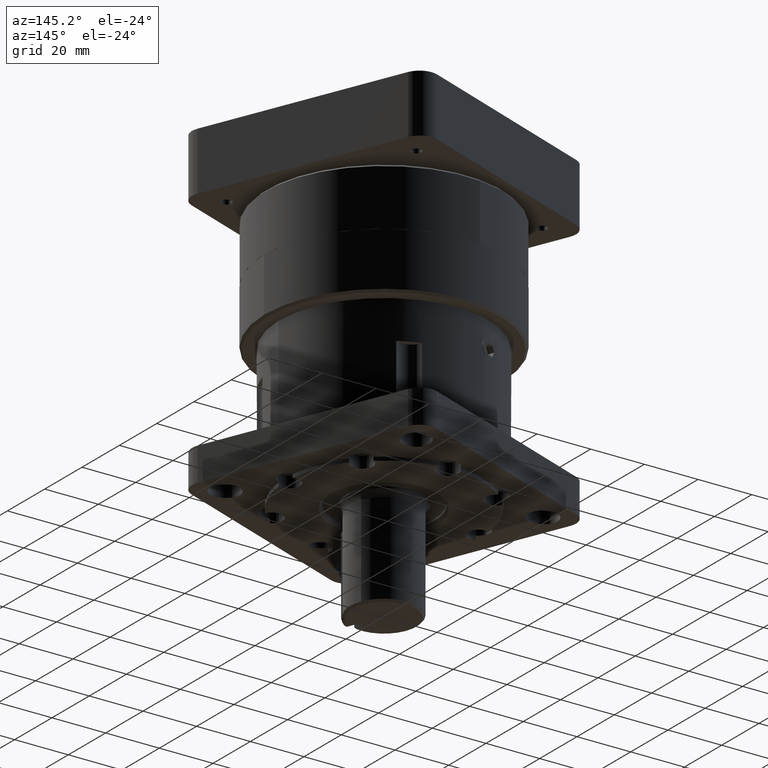
[diagram: clean part render]
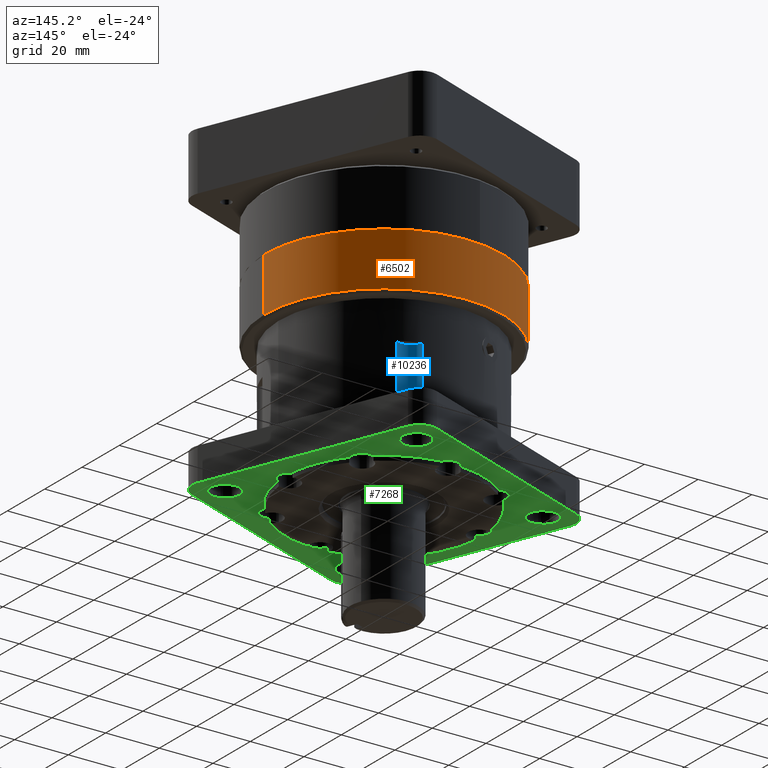
[diagram: same view with three faces highlighted in distinct colors, each labeled with its STEP entity id]
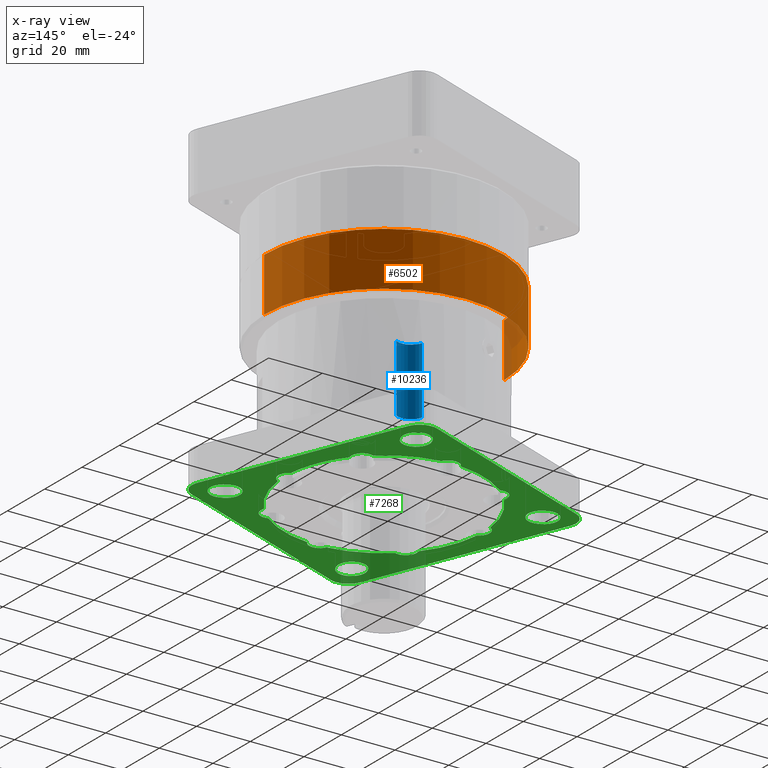
[diagram: x-ray of the same camera — body ghosted, the three highlighted faces saturated]
A machine part, auxiliary view with three faces highlighted in distinct colors.
The next image is the same camera in x-ray (body ghosted, the three faces saturated) — at least one of them is partly hidden behind the body in this view.
Their STEP definitions:

[orange] entity #6502 — the highlighted cylindrical surface (partial cylindrical patch) has radius 44.25 mm, axis along (-0, -0, 1).
#263 = CIRCLE ( 'NONE', #4123, 44.25000000000000711 ) ;
#607 = DIRECTION ( 'NONE',  ( -0.9999014065405877894, 0.01404197985165628326, -1.254489293361758247E-14 ) ) ;
#1160 = DIRECTION ( 'NONE',  ( -1.267388302276364896E-14, -1.075669440567348296E-14, 1.000000000000000000 ) ) ;
#2359 = ORIENTED_EDGE ( 'NONE', *, *, #15287, .T. ) ;
#2964 = ORIENTED_EDGE ( 'NONE', *, *, #7923, .F. ) ;
#3097 = ORIENTED_EDGE ( 'NONE', *, *, #6530, .T. ) ;
#3102 = CARTESIAN_POINT ( 'NONE',  ( -60.55208186478451893, 132.9359436952003080, 173.8901539304251571 ) ) ;
#3194 = VERTEX_POINT ( 'NONE', #3102 ) ;
#3426 = EDGE_CURVE ( 'NONE', #16001, #14882, #6044, .T. ) ;
#3724 = CYLINDRICAL_SURFACE ( 'NONE', #11090, 44.25000000000000711 ) ;
#4123 = AXIS2_PLACEMENT_3D ( 'NONE', #12904, #15497, #14371 ) ;
#5052 = CARTESIAN_POINT ( 'NONE',  ( -149.0433563436265274, 134.1786589120717395, 173.8901539304240487 ) ) ;
#6044 = LINE ( 'NONE', #14203, #15263 ) ;
#6502 = ADVANCED_FACE ( 'NONE', ( #14218 ), #3724, .T. ) ;
#6530 = EDGE_CURVE ( 'NONE', #14882, #3194, #263, .T. ) ;
#7923 = EDGE_CURVE ( 'NONE', #16551, #3194, #16749, .T. ) ;
#9649 = CARTESIAN_POINT ( 'NONE',  ( -60.55208186478427024, 132.9359436952004216, 153.8279539304250818 ) ) ;
#10056 = ORIENTED_EDGE ( 'NONE', *, *, #3426, .T. ) ;
#10175 = VECTOR ( 'NONE', #12136, 1000.000000000000000 ) ;
#10231 = DIRECTION ( 'NONE',  ( 0.9999014065405877894, -0.01404197985165315035, 1.254489293361758563E-14 ) ) ;
#10328 = AXIS2_PLACEMENT_3D ( 'NONE', #14724, #12278, #607 ) ;
#11090 = AXIS2_PLACEMENT_3D ( 'NONE', #16745, #1160, #10231 ) ;
#11651 = EDGE_LOOP ( 'NONE', ( #2359, #10056, #3097, #2964 ) ) ;
#11857 = CARTESIAN_POINT ( 'NONE',  ( -149.0433563436262716, 134.1786589120717395, 153.8279539304239734 ) ) ;
#12136 = DIRECTION ( 'NONE',  ( -1.267388302276364896E-14, -1.075669440567348296E-14, 1.000000000000000000 ) ) ;
#12278 = DIRECTION ( 'NONE',  ( -1.267388302276364896E-14, -1.075669440567348296E-14, 1.000000000000000000 ) ) ;
#12904 = CARTESIAN_POINT ( 'NONE',  ( -104.7977191042055267, 133.5573013036359669, 173.8901539304245887 ) ) ;
#13316 = CARTESIAN_POINT ( 'NONE',  ( -60.55208186478431998, 132.9359436952004785, 158.0659539304251382 ) ) ;
#14203 = CARTESIAN_POINT ( 'NONE',  ( -149.0433563436263569, 134.1786589120717963, 158.0659539304240297 ) ) ;
#14218 = FACE_OUTER_BOUND ( 'NONE', #11651, .T. ) ;
#14371 = DIRECTION ( 'NONE',  ( 0.9999014065405877894, -0.01404197985165315035, 1.254489293361758563E-14 ) ) ;
#14724 = CARTESIAN_POINT ( 'NONE',  ( -104.7977191042052851, 133.5573013036361942, 153.8279539304245418 ) ) ;
#14882 = VERTEX_POINT ( 'NONE', #5052 ) ;
#15263 = VECTOR ( 'NONE', #15484, 1000.000000000000000 ) ;
#15287 = EDGE_CURVE ( 'NONE', #16551, #16001, #15465, .T. ) ;
#15465 = CIRCLE ( 'NONE', #10328, 44.25000000000002132 ) ;
#15484 = DIRECTION ( 'NONE',  ( -1.267388302276364896E-14, -1.075669440567348296E-14, 1.000000000000000000 ) ) ;
#15497 = DIRECTION ( 'NONE',  ( 1.267242450402895730E-14, 1.075671488818361258E-14, -1.000000000000000000 ) ) ;
#16001 = VERTEX_POINT ( 'NONE', #11857 ) ;
#16551 = VERTEX_POINT ( 'NONE', #9649 ) ;
#16745 = CARTESIAN_POINT ( 'NONE',  ( -104.7977191042053420, 133.5573013036361374, 158.0659539304245698 ) ) ;
#16749 = LINE ( 'NONE', #13316, #10175 ) ;

[blue] entity #10236 — the highlighted cylindrical surface (edge-blend (fillet) strip) has radius 5 mm, axis along (0, 0, -1).
#34 = FACE_OUTER_BOUND ( 'NONE', #14190, .T. ) ;
#3888 = VERTEX_POINT ( 'NONE', #12994 ) ;
#3958 = ORIENTED_EDGE ( 'NONE', *, *, #14922, .F. ) ;
#4968 = AXIS2_PLACEMENT_3D ( 'NONE', #13341, #15959, #10678 ) ;
#5312 = DIRECTION ( 'NONE',  ( -0.9999014065405879004, 0.01404197985165334638, -1.110223024625157014E-14 ) ) ;
#5457 = EDGE_CURVE ( 'NONE', #11591, #13874, #8188, .T. ) ;
#5632 = VECTOR ( 'NONE', #12683, 1000.000000000000000 ) ;
#6398 = LINE ( 'NONE', #9249, #15831 ) ;
#7050 = LINE ( 'NONE', #11405, #5632 ) ;
#7687 = DIRECTION ( 'NONE',  ( 1.267388302276364896E-14, 1.075669440567348296E-14, -1.000000000000000000 ) ) ;
#8188 = CIRCLE ( 'NONE', #11811, 5.000000000000000000 ) ;
#8962 = CARTESIAN_POINT ( 'NONE',  ( -88.24849863570705111, 171.9023710455600451, 138.7859539304251939 ) ) ;
#8995 = CYLINDRICAL_SURFACE ( 'NONE', #10595, 4.999999999999998224 ) ;
#9023 = DIRECTION ( 'NONE',  ( 1.267388302276364896E-14, 1.075669440567348296E-14, -1.000000000000000000 ) ) ;
#9031 = CARTESIAN_POINT ( 'NONE',  ( -88.24849863570705111, 171.9023710455600451, 138.7859539304251939 ) ) ;
#9187 = VERTEX_POINT ( 'NONE', #15759 ) ;
#9249 = CARTESIAN_POINT ( 'NONE',  ( -85.73417312991301742, 167.5805465175495499, 126.2859539304251939 ) ) ;
#9923 = CARTESIAN_POINT ( 'NONE',  ( -85.73417312991317374, 167.5805465175494078, 138.7859539304251939 ) ) ;
#10236 = ADVANCED_FACE ( 'NONE', ( #34 ), #8995, .F. ) ;
#10501 = DIRECTION ( 'NONE',  ( -1.267388302276364896E-14, -1.075669440567348296E-14, 1.000000000000000000 ) ) ;
#10595 = AXIS2_PLACEMENT_3D ( 'NONE', #8962, #9023, #5312 ) ;
#10635 = ORIENTED_EDGE ( 'NONE', *, *, #13648, .T. ) ;
#10678 = DIRECTION ( 'NONE',  ( -0.9999014065405879004, 0.01404197985165334638, -1.387778780781446149E-14 ) ) ;
#11405 = CARTESIAN_POINT ( 'NONE',  ( -93.11795291853343315, 170.7672873537285341, 126.2859539304251371 ) ) ;
#11411 = CARTESIAN_POINT ( 'NONE',  ( -93.11795291853360368, 170.7672873537283920, 138.7859539304251371 ) ) ;
#11591 = VERTEX_POINT ( 'NONE', #9923 ) ;
#11616 = DIRECTION ( 'NONE',  ( -0.01404197985166444340, -0.9999014065405875673, -1.110223024625156540E-14 ) ) ;
#11811 = AXIS2_PLACEMENT_3D ( 'NONE', #9031, #7687, #11616 ) ;
#12683 = DIRECTION ( 'NONE',  ( 1.267388302276364896E-14, 1.075669440567348296E-14, -1.000000000000000000 ) ) ;
#12922 = CIRCLE ( 'NONE', #4968, 4.999999999999998224 ) ;
#12994 = CARTESIAN_POINT ( 'NONE',  ( -93.11795291853327683, 170.7672873537286762, 113.7859539304251228 ) ) ;
#13341 = CARTESIAN_POINT ( 'NONE',  ( -88.24849863570673847, 171.9023710455603293, 113.7859539304252081 ) ) ;
#13488 = ORIENTED_EDGE ( 'NONE', *, *, #5457, .F. ) ;
#13648 = EDGE_CURVE ( 'NONE', #9187, #3888, #12922, .T. ) ;
#13874 = VERTEX_POINT ( 'NONE', #11411 ) ;
#14190 = EDGE_LOOP ( 'NONE', ( #13488, #14428, #10635, #3958 ) ) ;
#14428 = ORIENTED_EDGE ( 'NONE', *, *, #16520, .F. ) ;
#14922 = EDGE_CURVE ( 'NONE', #13874, #3888, #7050, .T. ) ;
#15759 = CARTESIAN_POINT ( 'NONE',  ( -85.73417312991286110, 167.5805465175496920, 113.7859539304251939 ) ) ;
#15831 = VECTOR ( 'NONE', #10501, 1000.000000000000000 ) ;
#15959 = DIRECTION ( 'NONE',  ( 1.267388302276364896E-14, 1.075669440567348296E-14, -1.000000000000000000 ) ) ;
#16520 = EDGE_CURVE ( 'NONE', #9187, #11591, #6398, .T. ) ;

[green] entity #7268 — the highlighted planar face has unit normal (-0, -0, 1).
#7 = EDGE_CURVE ( 'NONE', #14806, #3443, #3850, .T. ) ;
#57 = CARTESIAN_POINT ( 'NONE',  ( -79.62069283818506449, 192.0048619747230418, 101.3421530004241617 ) ) ;
#70 = DIRECTION ( 'NONE',  ( -1.269886168408491614E-14, -1.076663275899905845E-14, 1.000000000000000000 ) ) ;
#130 = DIRECTION ( 'NONE',  ( 1.269886168408491614E-14, 1.076663275899905845E-14, -1.000000000000000000 ) ) ;
#173 = CARTESIAN_POINT ( 'NONE',  ( -104.7977191042035230, 133.5573013036376153, 101.3421530004232238 ) ) ;
#219 = DIRECTION ( 'NONE',  ( 1.269886168408491614E-14, 1.076663275899905845E-14, -1.000000000000000000 ) ) ;
#257 = VERTEX_POINT ( 'NONE', #16183 ) ;
#391 = DIRECTION ( 'NONE',  ( 0.9291620770789343897, 0.3696726045007396877, 1.510801161037340065E-14 ) ) ;
#584 = CARTESIAN_POINT ( 'NONE',  ( -152.5681355903859924, 157.9875429461714020, 101.3421530004228686 ) ) ;
#621 = AXIS2_PLACEMENT_3D ( 'NONE', #15481, #1289, #2587 ) ;
#632 = CARTESIAN_POINT ( 'NONE',  ( -119.9830555142412152, 85.65705524410276439, 101.3421530004225133 ) ) ;
#654 = ORIENTED_EDGE ( 'NONE', *, *, #14886, .F. ) ;
#676 = VERTEX_POINT ( 'NONE', #6556 ) ;
#685 = DIRECTION ( 'NONE',  ( -0.9291620770789330575, -0.3696726045007434625, -1.734723475976811196E-14 ) ) ;
#769 = DIRECTION ( 'NONE',  ( 1.269886168408491614E-14, 1.076663275899905845E-14, -1.000000000000000000 ) ) ;
#799 = CARTESIAN_POINT ( 'NONE',  ( -76.61209797301080471, 109.7518165637952592, 101.3421530004233233 ) ) ;
#829 = DIRECTION ( 'NONE',  ( 0.9291620770789323913, 0.3696726045007449613, 1.577942987264462792E-14 ) ) ;
#868 = VERTEX_POINT ( 'NONE', #13346 ) ;
#920 = DIRECTION ( 'NONE',  ( -0.3696726045007426853, 0.9291620770789332795, 5.546899479521340858E-15 ) ) ;
#922 = EDGE_CURVE ( 'NONE', #11175, #868, #4006, .T. ) ;
#955 = AXIS2_PLACEMENT_3D ( 'NONE', #2443, #6253, #12770 ) ;
#1017 = CARTESIAN_POINT ( 'NONE',  ( -52.32467058873555743, 106.0032801906793622, 101.3421530004235933 ) ) ;
#1073 = DIRECTION ( 'NONE',  ( -1.269886168408491614E-14, -1.076663275899905845E-14, 1.000000000000000000 ) ) ;
#1080 = CIRCLE ( 'NONE', #1680, 3.999999999999996003 ) ;
#1155 = VERTEX_POINT ( 'NONE', #15335 ) ;
#1213 = AXIS2_PLACEMENT_3D ( 'NONE', #13113, #10611, #13169 ) ;
#1258 = EDGE_CURVE ( 'NONE', #2275, #16302, #6473, .T. ) ;
#1281 = FACE_BOUND ( 'NONE', #8187, .T. ) ;
#1289 = DIRECTION ( 'NONE',  ( 1.269886163228595672E-14, 1.076663288919448452E-14, -1.000000000000000000 ) ) ;
#1295 = DIRECTION ( 'NONE',  ( -0.9291620770789330575, -0.3696726045007434625, -1.734723475976811196E-14 ) ) ;
#1374 = VECTOR ( 'NONE', #10280, 1000.000000000000000 ) ;
#1435 = CARTESIAN_POINT ( 'NONE',  ( -132.3517402171617334, 81.08425278816966397, 101.3421530004223001 ) ) ;
#1491 = CARTESIAN_POINT ( 'NONE',  ( -75.95472673735301328, 156.5619124408564176, 101.3421530004238349 ) ) ;
#1549 = ORIENTED_EDGE ( 'NONE', *, *, #9136, .F. ) ;
#1563 = AXIS2_PLACEMENT_3D ( 'NONE', #3038, #769, #3434 ) ;
#1564 = VERTEX_POINT ( 'NONE', #5565 ) ;
#1583 = CIRCLE ( 'NONE', #15220, 36.89349999999999596 ) ;
#1642 = DIRECTION ( 'NONE',  ( -0.9291620770789330575, -0.3696726045007434625, -1.734723475976811196E-14 ) ) ;
#1680 = AXIS2_PLACEMENT_3D ( 'NONE', #7627, #14102, #14271 ) ;
#1701 = ORIENTED_EDGE ( 'NONE', *, *, #922, .F. ) ;
#1729 = AXIS2_PLACEMENT_3D ( 'NONE', #5919, #14901, #14739 ) ;
#1770 = VERTEX_POINT ( 'NONE', #799 ) ;
#1792 = CARTESIAN_POINT ( 'NONE',  ( -148.0156106380626397, 157.6222555329227930, 101.3421530004229254 ) ) ;
#1811 = DIRECTION ( 'NONE',  ( 1.269886168408491614E-14, 1.076663275899905845E-14, -1.000000000000000000 ) ) ;
#1816 = DIRECTION ( 'NONE',  ( -0.3696726045007448502, 0.9291620770789323913, 5.546899479521352691E-15 ) ) ;
#1882 = FACE_BOUND ( 'NONE', #15032, .T. ) ;
#1919 = VERTEX_POINT ( 'NONE', #9517 ) ;
#1939 = AXIS2_PLACEMENT_3D ( 'NONE', #13915, #8817, #12571 ) ;
#1954 = DIRECTION ( 'NONE',  ( -0.9291620770789330575, -0.3696726045007434625, -1.734723475976811196E-14 ) ) ;
#1956 = DIRECTION ( 'NONE',  ( -0.9184148109852698916, 0.3956188000624983325, -7.403340320488136139E-15 ) ) ;
#2015 = CARTESIAN_POINT ( 'NONE',  ( -60.85666774817421043, 109.1808368311839672, 101.3421530004235080 ) ) ;
#2068 = DIRECTION ( 'NONE',  ( 1.269886163228595672E-14, 1.076663288919448452E-14, -1.000000000000000000 ) ) ;
#2073 = CARTESIAN_POINT ( 'NONE',  ( -85.59520499380261072, 189.6278671277832757, 101.3421530004240623 ) ) ;
#2078 = ORIENTED_EDGE ( 'NONE', *, *, #13594, .F. ) ;
#2197 = LINE ( 'NONE', #6414, #12900 ) ;
#2258 = DIRECTION ( 'NONE',  ( -1.269886168408491614E-14, -1.076663275899905845E-14, 1.000000000000000000 ) ) ;
#2275 = VERTEX_POINT ( 'NONE', #8466 ) ;
#2314 = DIRECTION ( 'NONE',  ( 0.9291620770789325023, 0.3696726045007445727, 1.579863899950417416E-14 ) ) ;
#2337 = EDGE_CURVE ( 'NONE', #4483, #16692, #15908, .T. ) ;
#2393 = DIRECTION ( 'NONE',  ( -0.9291620770789317252, -0.3696726045007464045, -1.734723475976808672E-14 ) ) ;
#2419 = EDGE_CURVE ( 'NONE', #9106, #9236, #15717, .T. ) ;
#2438 = VERTEX_POINT ( 'NONE', #15227 ) ;
#2443 = CARTESIAN_POINT ( 'NONE',  ( -150.7183678119850470, 153.3382017448838894, 101.3421530004228401 ) ) ;
#2473 = CARTESIAN_POINT ( 'NONE',  ( -104.7977191042035230, 133.5573013036376153, 101.3421530004232238 ) ) ;
#2484 = DIRECTION ( 'NONE',  ( 0.9291620770789325023, 0.3696726045007445727, 1.579863899950417416E-14 ) ) ;
#2587 = DIRECTION ( 'NONE',  ( -0.3696726045007426853, 0.9291620770789332795, 5.546899479521340858E-15 ) ) ;
#2589 = DIRECTION ( 'NONE',  ( 0.9291620770789325023, 0.3696726045007445727, 1.579863899950417416E-14 ) ) ;
#2618 = VECTOR ( 'NONE', #5981, 1000.000000000000227 ) ;
#2674 = ORIENTED_EDGE ( 'NONE', *, *, #15113, .T. ) ;
#2690 = EDGE_CURVE ( 'NONE', #4138, #9981, #15702, .T. ) ;
#2691 = LINE ( 'NONE', #57, #3100 ) ;
#2725 = CARTESIAN_POINT ( 'NONE',  ( -70.51767801349193121, 147.1958175377858140, 101.3421530004238065 ) ) ;
#2749 = CARTESIAN_POINT ( 'NONE',  ( -83.21821014686281615, 183.6533549721657153, 101.3421530004240338 ) ) ;
#2824 = AXIS2_PLACEMENT_3D ( 'NONE', #2749, #15587, #7892 ) ;
#2869 = DIRECTION ( 'NONE',  ( 0.9291620770789325023, 0.3696726045007445727, 1.579863899950417416E-14 ) ) ;
#2887 = VERTEX_POINT ( 'NONE', #7508 ) ;
#2903 = DIRECTION ( 'NONE',  ( -0.3696726045007450723, 0.9291620770789322803, 5.546899479521334547E-15 ) ) ;
#2904 = CIRCLE ( 'NONE', #11555, 36.89349999999999596 ) ;
#2932 = EDGE_CURVE ( 'NONE', #13819, #9540, #2197, .T. ) ;
#2966 = VERTEX_POINT ( 'NONE', #16717 ) ;
#3038 = CARTESIAN_POINT ( 'NONE',  ( -79.70390055520137196, 157.9560773104325904, 101.3421530004238065 ) ) ;
#3100 = VECTOR ( 'NONE', #7828, 1000.000000000000000 ) ;
#3113 = LINE ( 'NONE', #10965, #13016 ) ;
#3171 = EDGE_CURVE ( 'NONE', #257, #15048, #15888, .T. ) ;
#3184 = VERTEX_POINT ( 'NONE', #5941 ) ;
#3201 = DIRECTION ( 'NONE',  ( 0.9291620770789323913, 0.3696726045007449613, 1.577942987264462792E-14 ) ) ;
#3313 = CARTESIAN_POINT ( 'NONE',  ( -124.2671093022803888, 88.35981241802581110, 101.3421530004224849 ) ) ;
#3341 = ORIENTED_EDGE ( 'NONE', *, *, #4151, .T. ) ;
#3383 = ORIENTED_EDGE ( 'NONE', *, *, #11621, .F. ) ;
#3402 = ORIENTED_EDGE ( 'NONE', *, *, #6054, .F. ) ;
#3430 = ORIENTED_EDGE ( 'NONE', *, *, #3812, .F. ) ;
#3434 = DIRECTION ( 'NONE',  ( -0.9291620770789335015, -0.3696726045007422412, -1.734723475976805517E-14 ) ) ;
#3443 = VERTEX_POINT ( 'NONE', #14139 ) ;
#3505 = DIRECTION ( 'NONE',  ( 1.269886163228595672E-14, 1.076663288919448452E-14, -1.000000000000000000 ) ) ;
#3537 = EDGE_CURVE ( 'NONE', #5370, #16543, #3786, .T. ) ;
#3638 = CARTESIAN_POINT ( 'NONE',  ( -60.85666774817421754, 109.1808368311839814, 101.3421530004235080 ) ) ;
#3727 = VERTEX_POINT ( 'NONE', #11276 ) ;
#3786 = CIRCLE ( 'NONE', #5907, 5.003799999999992032 ) ;
#3812 = EDGE_CURVE ( 'NONE', #16390, #16122, #6628, .T. ) ;
#3836 = VECTOR ( 'NONE', #1956, 1000.000000000000000 ) ;
#3850 = CIRCLE ( 'NONE', #7994, 3.999999999999990674 ) ;
#3950 = LINE ( 'NONE', #632, #15651 ) ;
#3974 = CARTESIAN_POINT ( 'NONE',  ( -143.5109166414398203, 132.5700801804427442, 101.3421530004227122 ) ) ;
#3978 = ORIENTED_EDGE ( 'NONE', *, *, #10102, .F. ) ;
#3989 = CARTESIAN_POINT ( 'NONE',  ( -68.13592707818816052, 129.4289423450202889, 101.3421530004236359 ) ) ;
#4004 = DIRECTION ( 'NONE',  ( -0.3956188000625039947, -0.9184148109852674491, -1.491214341192129001E-14 ) ) ;
#4006 = CIRCLE ( 'NONE', #8228, 3.999999999999990674 ) ;
#4079 = ORIENTED_EDGE ( 'NONE', *, *, #5117, .F. ) ;
#4129 = AXIS2_PLACEMENT_3D ( 'NONE', #11213, #12486, #15092 ) ;
#4138 = VERTEX_POINT ( 'NONE', #15517 ) ;
#4151 = EDGE_CURVE ( 'NONE', #14806, #16445, #13275, .T. ) ;
#4172 = DIRECTION ( 'NONE',  ( 1.269886168408491614E-14, 1.076663275899905845E-14, -1.000000000000000000 ) ) ;
#4178 = AXIS2_PLACEMENT_3D ( 'NONE', #15310, #16473, #6175 ) ;
#4211 = AXIS2_PLACEMENT_3D ( 'NONE', #10171, #12689, #4826 ) ;
#4256 = DIRECTION ( 'NONE',  ( 1.269886168408491614E-14, 1.076663275899905845E-14, -1.000000000000000000 ) ) ;
#4272 = VERTEX_POINT ( 'NONE', #14898 ) ;
#4301 = DIRECTION ( 'NONE',  ( 1.269886163228595672E-14, 1.076663288919448452E-14, -1.000000000000000000 ) ) ;
#4483 = VERTEX_POINT ( 'NONE', #13007 ) ;
#4498 = ORIENTED_EDGE ( 'NONE', *, *, #14667, .F. ) ;
#4544 = DIRECTION ( 'NONE',  ( 1.269886168408491614E-14, 1.076663275899905845E-14, -1.000000000000000000 ) ) ;
#4551 = AXIS2_PLACEMENT_3D ( 'NONE', #4872, #7317, #16190 ) ;
#4651 = CARTESIAN_POINT ( 'NONE',  ( -152.6979651637383313, 148.7426377136754638, 101.3421530004227833 ) ) ;
#4666 = EDGE_CURVE ( 'NONE', #2887, #11056, #13441, .T. ) ;
#4688 = CARTESIAN_POINT ( 'NONE',  ( -85.01681866295710677, 179.4779500114190682, 101.3421530004239770 ) ) ;
#4739 = CIRCLE ( 'NONE', #15004, 3.999999999999996003 ) ;
#4744 = ORIENTED_EDGE ( 'NONE', *, *, #8989, .T. ) ;
#4826 = DIRECTION ( 'NONE',  ( 0.9291620770789330575, 0.3696726045007430739, 1.510801161037345113E-14 ) ) ;
#4848 = VECTOR ( 'NONE', #10185, 1000.000000000000227 ) ;
#4872 = CARTESIAN_POINT ( 'NONE',  ( -104.7977191042035230, 133.5573013036376153, 101.3421530004232238 ) ) ;
#4931 = DIRECTION ( 'NONE',  ( 1.269886163228595672E-14, 1.076663288919448452E-14, -1.000000000000000000 ) ) ;
#4943 = ORIENTED_EDGE ( 'NONE', *, *, #2337, .F. ) ;
#5117 = EDGE_CURVE ( 'NONE', #3727, #14908, #4739, .T. ) ;
#5237 = CIRCLE ( 'NONE', #9891, 3.999999999999990674 ) ;
#5247 = CIRCLE ( 'NONE', #621, 5.003800000000005355 ) ;
#5275 = CIRCLE ( 'NONE', #13453, 6.430000000000005045 ) ;
#5295 = CARTESIAN_POINT ( 'NONE',  ( -128.6032038440459644, 105.3716801724449681, 101.3421530004226128 ) ) ;
#5310 = ORIENTED_EDGE ( 'NONE', *, *, #10468, .F. ) ;
#5370 = VERTEX_POINT ( 'NONE', #5929 ) ;
#5378 = VERTEX_POINT ( 'NONE', #2073 ) ;
#5395 = ORIENTED_EDGE ( 'NONE', *, *, #2690, .F. ) ;
#5466 = LINE ( 'NONE', #4651, #2618 ) ;
#5565 = CARTESIAN_POINT ( 'NONE',  ( -48.72715328005780577, 114.3547871932367030, 101.3421530004237212 ) ) ;
#5740 = CARTESIAN_POINT ( 'NONE',  ( -139.7942683331240801, 134.0487705984457136, 101.3421530004227833 ) ) ;
#5760 = DIRECTION ( 'NONE',  ( -0.3956188000625384116, -0.9184148109852525721, -1.491214341192156769E-14 ) ) ;
#5804 = EDGE_CURVE ( 'NONE', #6089, #16390, #15814, .T. ) ;
#5836 = CARTESIAN_POINT ( 'NONE',  ( -104.7977191042035230, 133.5573013036376153, 101.3421530004232238 ) ) ;
#5907 = AXIS2_PLACEMENT_3D ( 'NONE', #6722, #9329, #15760 ) ;
#5919 = CARTESIAN_POINT ( 'NONE',  ( -59.60023021859164771, 114.0879111055608774, 101.3421530004235791 ) ) ;
#5929 = CARTESIAN_POINT ( 'NONE',  ( -119.9830555142412152, 85.65705524410276439, 101.3421530004225133 ) ) ;
#5937 = DIRECTION ( 'NONE',  ( -1.269886168408491614E-14, -1.076663275899905845E-14, 1.000000000000000000 ) ) ;
#5941 = CARTESIAN_POINT ( 'NONE',  ( -89.92389293733475597, 180.7343875410025476, 101.3421530004239202 ) ) ;
#5981 = DIRECTION ( 'NONE',  ( -0.9184148109852550146, 0.3956188000625326384, -7.403340320487579203E-15 ) ) ;
#6036 = CARTESIAN_POINT ( 'NONE',  ( -152.6979651637383313, 148.7426377136754638, 101.3421530004227833 ) ) ;
#6054 = EDGE_CURVE ( 'NONE', #10809, #2966, #9214, .T. ) ;
#6089 = VERTEX_POINT ( 'NONE', #13042 ) ;
#6175 = DIRECTION ( 'NONE',  ( -0.3696726045007450723, 0.9291620770789322803, 5.546899479521334547E-15 ) ) ;
#6231 = CARTESIAN_POINT ( 'NONE',  ( -56.89747304466862232, 118.3719648936000937, 101.3421530004236644 ) ) ;
#6253 = DIRECTION ( 'NONE',  ( 1.269886163228595672E-14, 1.076663288919448452E-14, -1.000000000000000000 ) ) ;
#6257 = PLANE ( 'NONE',  #16204 ) ;
#6277 = VERTEX_POINT ( 'NONE', #584 ) ;
#6316 = CARTESIAN_POINT ( 'NONE',  ( -148.7387704602326437, 157.9337657760915477, 101.3421530004229254 ) ) ;
#6393 = ORIENTED_EDGE ( 'NONE', *, *, #11201, .T. ) ;
#6414 = CARTESIAN_POINT ( 'NONE',  ( -163.2452797752889637, 158.7343275696560170, 101.3421530004227549 ) ) ;
#6473 = CIRCLE ( 'NONE', #11373, 3.999999999999996003 ) ;
#6525 = CIRCLE ( 'NONE', #13762, 36.89349999999999596 ) ;
#6547 = CIRCLE ( 'NONE', #11139, 5.003799999999984927 ) ;
#6549 = DIRECTION ( 'NONE',  ( -1.269886168408491614E-14, -1.076663275899905845E-14, 1.000000000000000000 ) ) ;
#6556 = CARTESIAN_POINT ( 'NONE',  ( -148.7387704602326437, 157.9337657760915477, 101.3421530004229254 ) ) ;
#6597 = ORIENTED_EDGE ( 'NONE', *, *, #16202, .F. ) ;
#6606 = EDGE_CURVE ( 'NONE', #2438, #5378, #3113, .T. ) ;
#6628 = LINE ( 'NONE', #16542, #11096 ) ;
#6722 = CARTESIAN_POINT ( 'NONE',  ( -124.5786195454496266, 87.63665259585600609, 101.3421530004224707 ) ) ;
#6744 = CIRCLE ( 'NONE', #14011, 36.89349999999999596 ) ;
#6751 = AXIS2_PLACEMENT_3D ( 'NONE', #3313, #2068, #9783 ) ;
#6836 = CIRCLE ( 'NONE', #12894, 6.430000000000014815 ) ;
#6852 = CIRCLE ( 'NONE', #4551, 36.89349999999999596 ) ;
#6907 = CARTESIAN_POINT ( 'NONE',  ( -69.80116987528295169, 133.0658320088297160, 101.3421530004236644 ) ) ;
#7261 = EDGE_CURVE ( 'NONE', #1770, #15545, #11000, .T. ) ;
#7266 = CARTESIAN_POINT ( 'NONE',  ( -68.03445558142331606, 136.6545254484915688, 101.3421530004237212 ) ) ;
#7268 = ADVANCED_FACE ( 'NONE', ( #1281, #1882, #14776, #14596, #15580, #15166 ), #6257, .F. ) ;
#7317 = DIRECTION ( 'NONE',  ( -1.269886168408491614E-14, -1.076663275899905845E-14, 1.000000000000000000 ) ) ;
#7337 = DIRECTION ( 'NONE',  ( -0.3696726045007469597, 0.9291620770789315031, 5.546899479521362946E-15 ) ) ;
#7394 = CARTESIAN_POINT ( 'NONE',  ( -61.57982757034422150, 109.4923470743527076, 101.3421530004235080 ) ) ;
#7398 = AXIS2_PLACEMENT_3D ( 'NONE', #10415, #10255, #2484 ) ;
#7420 = VERTEX_POINT ( 'NONE', #13385 ) ;
#7443 = DIRECTION ( 'NONE',  ( -1.269886168408491614E-14, -1.076663275899905845E-14, 1.000000000000000000 ) ) ;
#7448 = DIRECTION ( 'NONE',  ( 1.269886163228595672E-14, 1.076663288919448452E-14, -1.000000000000000000 ) ) ;
#7461 = ORIENTED_EDGE ( 'NONE', *, *, #16684, .F. ) ;
#7508 = CARTESIAN_POINT ( 'NONE',  ( -56.89747304466862232, 118.3719648936000937, 101.3421530004236644 ) ) ;
#7583 = CIRCLE ( 'NONE', #6751, 5.003800000000010684 ) ;
#7627 = CARTESIAN_POINT ( 'NONE',  ( -129.8915376532058588, 109.1585252968427966, 101.3421530004226412 ) ) ;
#7705 = ORIENTED_EDGE ( 'NONE', *, *, #9382, .F. ) ;
#7764 = EDGE_CURVE ( 'NONE', #13409, #14908, #10982, .T. ) ;
#7828 = DIRECTION ( 'NONE',  ( 0.3696726045007451278, -0.9291620770789322803, -5.309525584547249971E-15 ) ) ;
#7835 = ORIENTED_EDGE ( 'NONE', *, *, #3537, .F. ) ;
#7837 = EDGE_CURVE ( 'NONE', #10809, #8149, #6525, .T. ) ;
#7888 = ORIENTED_EDGE ( 'NONE', *, *, #7, .F. ) ;
#7892 = DIRECTION ( 'NONE',  ( 0.9291620770789358330, 0.3696726045007359684, 1.510801161037342589E-14 ) ) ;
#7947 = CIRCLE ( 'NONE', #4178, 5.003800000000010684 ) ;
#7994 = AXIS2_PLACEMENT_3D ( 'NONE', #13186, #8183, #12009 ) ;
#8053 = CARTESIAN_POINT ( 'NONE',  ( -126.1168770806813058, 93.00915361931333791, 101.3421530004225133 ) ) ;
#8106 = DIRECTION ( 'NONE',  ( 1.269886163228595672E-14, 1.076663288919448452E-14, -1.000000000000000000 ) ) ;
#8149 = VERTEX_POINT ( 'NONE', #15448 ) ;
#8183 = DIRECTION ( 'NONE',  ( 1.269886168408491614E-14, 1.076663275899905845E-14, -1.000000000000000000 ) ) ;
#8187 = EDGE_LOOP ( 'NONE', ( #8849, #16719, #11860, #4943, #5310 ) ) ;
#8228 = AXIS2_PLACEMENT_3D ( 'NONE', #5740, #16124, #685 ) ;
#8248 = CARTESIAN_POINT ( 'NONE',  ( -80.73276487491817477, 176.7751928374966610, 101.3421530004239912 ) ) ;
#8298 = CIRCLE ( 'NONE', #16527, 36.89349999999999596 ) ;
#8353 = CARTESIAN_POINT ( 'NONE',  ( -139.7942683331240801, 134.0487705984457136, 101.3421530004227833 ) ) ;
#8466 = CARTESIAN_POINT ( 'NONE',  ( -101.7004949593579823, 96.79403778084102328, 101.3421530004228543 ) ) ;
#8481 = AXIS2_PLACEMENT_3D ( 'NONE', #10157, #10326, #2393 ) ;
#8526 = CARTESIAN_POINT ( 'NONE',  ( -80.42125463174943434, 177.4983526596666934, 101.3421530004240054 ) ) ;
#8616 = EDGE_CURVE ( 'NONE', #16692, #2887, #9541, .T. ) ;
#8621 = ORIENTED_EDGE ( 'NONE', *, *, #8725, .T. ) ;
#8671 = LINE ( 'NONE', #6316, #1374 ) ;
#8725 = EDGE_CURVE ( 'NONE', #1564, #9981, #5275, .T. ) ;
#8765 = CARTESIAN_POINT ( 'NONE',  ( -141.5609826270001008, 130.4600771587919326, 101.3421530004227264 ) ) ;
#8817 = DIRECTION ( 'NONE',  ( 1.269886168408491614E-14, 1.076663275899905845E-14, -1.000000000000000000 ) ) ;
#8849 = ORIENTED_EDGE ( 'NONE', *, *, #9238, .F. ) ;
#8929 = LINE ( 'NONE', #2015, #3836 ) ;
#8989 = EDGE_CURVE ( 'NONE', #16445, #15048, #8298, .T. ) ;
#9035 = VERTEX_POINT ( 'NONE', #5295 ) ;
#9039 = CARTESIAN_POINT ( 'NONE',  ( -133.6407114710605413, 110.5526901664019448, 101.3421530004226128 ) ) ;
#9064 = ORIENTED_EDGE ( 'NONE', *, *, #14298, .T. ) ;
#9080 = DIRECTION ( 'NONE',  ( 0.3696726045007450168, -0.9291620770789322803, -5.309525584547249971E-15 ) ) ;
#9106 = VERTEX_POINT ( 'NONE', #1792 ) ;
#9136 = EDGE_CURVE ( 'NONE', #3184, #11073, #13336, .T. ) ;
#9138 = EDGE_LOOP ( 'NONE', ( #7461, #14206, #3402, #10913, #11976, #11311, #1701, #4498, #10693, #4079, #3978, #9064, #15538, #10385, #13601, #11877, #13589, #7888, #3341, #4744, #12989 ) ) ;
#9204 = DIRECTION ( 'NONE',  ( 0.9291620770789325023, 0.3696726045007445727, 1.579863899950417416E-14 ) ) ;
#9214 = CIRCLE ( 'NONE', #11406, 3.999999999999990674 ) ;
#9236 = VERTEX_POINT ( 'NONE', #9675 ) ;
#9238 = EDGE_CURVE ( 'NONE', #11056, #14347, #8929, .T. ) ;
#9316 = CARTESIAN_POINT ( 'NONE',  ( -105.2891883990117776, 98.56075207471704402, 101.3421530004228259 ) ) ;
#9328 = CARTESIAN_POINT ( 'NONE',  ( -89.61238269416550395, 181.4575473631723241, 101.3421530004239344 ) ) ;
#9329 = DIRECTION ( 'NONE',  ( 1.269886163228595672E-14, 1.076663288919448452E-14, -1.000000000000000000 ) ) ;
#9382 = EDGE_CURVE ( 'NONE', #9236, #14850, #5466, .T. ) ;
#9393 = CARTESIAN_POINT ( 'NONE',  ( -104.7977191042035230, 133.5573013036376153, 101.3421530004232238 ) ) ;
#9489 = DIRECTION ( 'NONE',  ( -0.9291620770789317252, -0.3696726045007464045, -1.734723475976808672E-14 ) ) ;
#9503 = CARTESIAN_POINT ( 'NONE',  ( -107.8949432490571070, 170.3205648264178365, 101.3421530004235791 ) ) ;
#9517 = CARTESIAN_POINT ( 'NONE',  ( -77.24369799124528413, 186.0303498191055382, 101.3421530004241333 ) ) ;
#9540 = VERTEX_POINT ( 'NONE', #1435 ) ;
#9541 = LINE ( 'NONE', #6231, #4848 ) ;
#9549 = AXIS2_PLACEMENT_3D ( 'NONE', #12102, #4301, #1816 ) ;
#9675 = CARTESIAN_POINT ( 'NONE',  ( -151.9748053415685263, 148.4311274705062260, 101.3421530004227833 ) ) ;
#9710 = EDGE_CURVE ( 'NONE', #16122, #3184, #12427, .T. ) ;
#9783 = DIRECTION ( 'NONE',  ( -0.3696726045007450723, 0.9291620770789322803, 5.546899479521334547E-15 ) ) ;
#9891 = AXIS2_PLACEMENT_3D ( 'NONE', #8353, #4544, #1954 ) ;
#9977 = EDGE_CURVE ( 'NONE', #1770, #12245, #2904, .T. ) ;
#9981 = VERTEX_POINT ( 'NONE', #1017 ) ;
#10074 = EDGE_CURVE ( 'NONE', #16543, #14417, #13399, .T. ) ;
#10102 = EDGE_CURVE ( 'NONE', #9035, #3727, #1080, .T. ) ;
#10104 = ORIENTED_EDGE ( 'NONE', *, *, #5804, .F. ) ;
#10157 = CARTESIAN_POINT ( 'NONE',  ( -80.39894309740861900, 108.4634827546353506, 101.3421530004232665 ) ) ;
#10171 = CARTESIAN_POINT ( 'NONE',  ( -126.3772280615442014, 83.46124763510945854, 101.3421530004223996 ) ) ;
#10185 = DIRECTION ( 'NONE',  ( 0.9184148109852550146, -0.3956188000625326384, 7.403340320487579203E-15 ) ) ;
#10255 = DIRECTION ( 'NONE',  ( -1.269886168408491614E-14, -1.076663275899905845E-14, 1.000000000000000000 ) ) ;
#10271 = DIRECTION ( 'NONE',  ( 0.9291620770789323913, 0.3696726045007450168, 1.577942987264462792E-14 ) ) ;
#10280 = DIRECTION ( 'NONE',  ( 0.9184148109852698916, -0.3956188000624983325, 7.403340320488136139E-15 ) ) ;
#10326 = DIRECTION ( 'NONE',  ( 1.269886168408491614E-14, 1.076663275899905845E-14, -1.000000000000000000 ) ) ;
#10385 = ORIENTED_EDGE ( 'NONE', *, *, #13236, .T. ) ;
#10409 = EDGE_LOOP ( 'NONE', ( #654, #15523, #2078, #7705, #11101 ) ) ;
#10415 = CARTESIAN_POINT ( 'NONE',  ( -104.7977191042035230, 133.5573013036376153, 101.3421530004232238 ) ) ;
#10468 = EDGE_CURVE ( 'NONE', #14347, #4483, #7947, .T. ) ;
#10469 = EDGE_CURVE ( 'NONE', #4272, #2966, #6744, .T. ) ;
#10611 = DIRECTION ( 'NONE',  ( 1.269886163228595672E-14, 1.076663288919448452E-14, -1.000000000000000000 ) ) ;
#10693 = ORIENTED_EDGE ( 'NONE', *, *, #7764, .T. ) ;
#10809 = VERTEX_POINT ( 'NONE', #9503 ) ;
#10812 = VECTOR ( 'NONE', #12667, 1000.000000000000000 ) ;
#10913 = ORIENTED_EDGE ( 'NONE', *, *, #7837, .T. ) ;
#10934 = CARTESIAN_POINT ( 'NONE',  ( -129.1741835766573274, 89.61624994760838092, 101.3421530004224280 ) ) ;
#10965 = CARTESIAN_POINT ( 'NONE',  ( -163.2452797752889637, 158.7343275696560170, 101.3421530004227549 ) ) ;
#10982 = CIRCLE ( 'NONE', #7398, 36.89349999999999596 ) ;
#11000 = CIRCLE ( 'NONE', #8481, 3.999999999999996003 ) ;
#11013 = AXIS2_PLACEMENT_3D ( 'NONE', #14565, #8106, #2903 ) ;
#11056 = VERTEX_POINT ( 'NONE', #3638 ) ;
#11073 = VERTEX_POINT ( 'NONE', #11575 ) ;
#11096 = VECTOR ( 'NONE', #4004, 1000.000000000000000 ) ;
#11101 = ORIENTED_EDGE ( 'NONE', *, *, #2419, .F. ) ;
#11113 = CARTESIAN_POINT ( 'NONE',  ( -129.9747453702219104, 75.10974063255213196, 101.3421530004222717 ) ) ;
#11139 = AXIS2_PLACEMENT_3D ( 'NONE', #4688, #3505, #16376 ) ;
#11143 = ORIENTED_EDGE ( 'NONE', *, *, #14494, .T. ) ;
#11175 = VERTEX_POINT ( 'NONE', #3974 ) ;
#11201 = EDGE_CURVE ( 'NONE', #1919, #1564, #2691, .T. ) ;
#11213 = CARTESIAN_POINT ( 'NONE',  ( -79.70390055520137196, 157.9560773104325904, 101.3421530004238065 ) ) ;
#11276 = CARTESIAN_POINT ( 'NONE',  ( -133.6081859615215706, 107.6798348788397988, 101.3421530004225701 ) ) ;
#11311 = ORIENTED_EDGE ( 'NONE', *, *, #14807, .T. ) ;
#11372 = CARTESIAN_POINT ( 'NONE',  ( -104.7977191042035230, 133.5573013036376153, 101.3421530004232238 ) ) ;
#11373 = AXIS2_PLACEMENT_3D ( 'NONE', #9316, #219, #9489 ) ;
#11406 = AXIS2_PLACEMENT_3D ( 'NONE', #13146, #15710, #1295 ) ;
#11513 = CIRCLE ( 'NONE', #2824, 6.430000000000005045 ) ;
#11555 = AXIS2_PLACEMENT_3D ( 'NONE', #15208, #1073, #16326 ) ;
#11567 = CIRCLE ( 'NONE', #1939, 3.999999999999990674 ) ;
#11575 = CARTESIAN_POINT ( 'NONE',  ( -89.61238269416550395, 181.4575473631723241, 101.3421530004239344 ) ) ;
#11621 = EDGE_CURVE ( 'NONE', #11073, #6089, #6547, .T. ) ;
#11750 = DIRECTION ( 'NONE',  ( 0.9291620770789325023, 0.3696726045007445172, 1.510801161037342589E-14 ) ) ;
#11860 = ORIENTED_EDGE ( 'NONE', *, *, #8616, .F. ) ;
#11864 = CARTESIAN_POINT ( 'NONE',  ( -129.8915376532058588, 109.1585252968427966, 101.3421530004226412 ) ) ;
#11877 = ORIENTED_EDGE ( 'NONE', *, *, #9977, .T. ) ;
#11976 = ORIENTED_EDGE ( 'NONE', *, *, #12493, .F. ) ;
#12009 = DIRECTION ( 'NONE',  ( -0.9291620770789330575, -0.3696726045007434625, -1.734723475976811196E-14 ) ) ;
#12075 = DIRECTION ( 'NONE',  ( 0.3956188000625384116, 0.9184148109852525721, 1.491214341192156769E-14 ) ) ;
#12102 = CARTESIAN_POINT ( 'NONE',  ( -58.87707039642185691, 113.7764008623916538, 101.3421530004235933 ) ) ;
#12245 = VERTEX_POINT ( 'NONE', #3989 ) ;
#12339 = ORIENTED_EDGE ( 'NONE', *, *, #2932, .F. ) ;
#12427 = CIRCLE ( 'NONE', #11013, 5.003800000000010684 ) ;
#12486 = DIRECTION ( 'NONE',  ( 1.269886168408491614E-14, 1.076663275899905845E-14, -1.000000000000000000 ) ) ;
#12493 = EDGE_CURVE ( 'NONE', #7420, #8149, #11567, .T. ) ;
#12516 = EDGE_CURVE ( 'NONE', #4138, #9540, #14942, .T. ) ;
#12529 = VECTOR ( 'NONE', #12075, 1000.000000000000227 ) ;
#12571 = DIRECTION ( 'NONE',  ( -0.9291620770789330575, -0.3696726045007434625, -1.734723475976811196E-14 ) ) ;
#12612 = CARTESIAN_POINT ( 'NONE',  ( -129.1741835766573274, 89.61624994760838092, 101.3421530004224280 ) ) ;
#12667 = DIRECTION ( 'NONE',  ( 0.3956188000625039947, 0.9184148109852674491, 1.491214341192129001E-14 ) ) ;
#12689 = DIRECTION ( 'NONE',  ( 1.269886168408491614E-14, 1.076663275899905845E-14, -1.000000000000000000 ) ) ;
#12742 = VERTEX_POINT ( 'NONE', #8053 ) ;
#12770 = DIRECTION ( 'NONE',  ( -0.3696726045007426853, 0.9291620770789332795, 5.546899479521340858E-15 ) ) ;
#12894 = AXIS2_PLACEMENT_3D ( 'NONE', #15795, #4256, #391 ) ;
#12900 = VECTOR ( 'NONE', #9080, 1000.000000000000114 ) ;
#12989 = ORIENTED_EDGE ( 'NONE', *, *, #3171, .F. ) ;
#13007 = CARTESIAN_POINT ( 'NONE',  ( -61.44999799699256471, 118.7372523068484185, 101.3421530004236075 ) ) ;
#13016 = VECTOR ( 'NONE', #3201, 1000.000000000000000 ) ;
#13034 = EDGE_CURVE ( 'NONE', #6277, #676, #13944, .T. ) ;
#13042 = CARTESIAN_POINT ( 'NONE',  ( -86.86658644135800955, 184.1272912127065808, 101.3421530004240054 ) ) ;
#13093 = DIRECTION ( 'NONE',  ( -0.9291620770789317252, -0.3696726045007464045, -1.734723475976808672E-14 ) ) ;
#13113 = CARTESIAN_POINT ( 'NONE',  ( -124.2671093022803888, 88.35981241802581110, 101.3421530004224849 ) ) ;
#13125 = CARTESIAN_POINT ( 'NONE',  ( -104.7977191042035230, 133.5573013036376153, 101.3421530004232238 ) ) ;
#13146 = CARTESIAN_POINT ( 'NONE',  ( -104.3062498093952684, 168.5538505325581582, 101.3421530004235933 ) ) ;
#13169 = DIRECTION ( 'NONE',  ( -0.3696726045007450723, 0.9291620770789322803, 5.546899479521334547E-15 ) ) ;
#13182 = EDGE_CURVE ( 'NONE', #3443, #12245, #13730, .T. ) ;
#13186 = CARTESIAN_POINT ( 'NONE',  ( -69.80116987528295169, 133.0658320088297160, 101.3421530004236644 ) ) ;
#13213 = AXIS2_PLACEMENT_3D ( 'NONE', #14983, #7448, #7337 ) ;
#13236 = EDGE_CURVE ( 'NONE', #2275, #15545, #16724, .T. ) ;
#13275 = CIRCLE ( 'NONE', #13575, 36.89349999999999596 ) ;
#13336 = LINE ( 'NONE', #9328, #12529 ) ;
#13346 = CARTESIAN_POINT ( 'NONE',  ( -141.4595111302188855, 137.6856602622551691, 101.3421530004228117 ) ) ;
#13385 = CARTESIAN_POINT ( 'NONE',  ( -132.9833402353960423, 157.3627860434800709, 101.3421530004231244 ) ) ;
#13399 = LINE ( 'NONE', #12612, #10812 ) ;
#13409 = VERTEX_POINT ( 'NONE', #8765 ) ;
#13441 = CIRCLE ( 'NONE', #9549, 5.003799999999994697 ) ;
#13453 = AXIS2_PLACEMENT_3D ( 'NONE', #14311, #130, #11750 ) ;
#13575 = AXIS2_PLACEMENT_3D ( 'NONE', #13125, #6549, #9204 ) ;
#13589 = ORIENTED_EDGE ( 'NONE', *, *, #13182, .F. ) ;
#13594 = EDGE_CURVE ( 'NONE', #14850, #6277, #5247, .T. ) ;
#13601 = ORIENTED_EDGE ( 'NONE', *, *, #7261, .F. ) ;
#13730 = CIRCLE ( 'NONE', #15319, 3.999999999999990674 ) ;
#13762 = AXIS2_PLACEMENT_3D ( 'NONE', #9393, #15766, #2869 ) ;
#13819 = VERTEX_POINT ( 'NONE', #15037 ) ;
#13833 = AXIS2_PLACEMENT_3D ( 'NONE', #14958, #4931, #920 ) ;
#13908 = VECTOR ( 'NONE', #829, 1000.000000000000000 ) ;
#13915 = CARTESIAN_POINT ( 'NONE',  ( -129.1964951109982565, 158.6511198526400221, 101.3421530004231812 ) ) ;
#13944 = CIRCLE ( 'NONE', #955, 5.003800000000005355 ) ;
#13973 = DIRECTION ( 'NONE',  ( 0.9291620770789325023, 0.3696726045007445727, 1.579863899950417416E-14 ) ) ;
#14011 = AXIS2_PLACEMENT_3D ( 'NONE', #11372, #2258, #2314 ) ;
#14060 = CARTESIAN_POINT ( 'NONE',  ( -113.1915158655050107, 114.0714041097703273, 101.3421530004228970 ) ) ;
#14102 = DIRECTION ( 'NONE',  ( 1.269886168408491614E-14, 1.076663275899905845E-14, -1.000000000000000000 ) ) ;
#14139 = CARTESIAN_POINT ( 'NONE',  ( -66.08452156696722568, 134.5445224268326854, 101.3421530004237354 ) ) ;
#14206 = ORIENTED_EDGE ( 'NONE', *, *, #10469, .T. ) ;
#14259 = ORIENTED_EDGE ( 'NONE', *, *, #12516, .T. ) ;
#14271 = DIRECTION ( 'NONE',  ( -0.9291620770789317252, -0.3696726045007464045, -1.734723475976808672E-14 ) ) ;
#14298 = EDGE_CURVE ( 'NONE', #9035, #16302, #1583, .T. ) ;
#14311 = CARTESIAN_POINT ( 'NONE',  ( -54.70166543567534490, 111.9777923462969085, 101.3421530004236217 ) ) ;
#14347 = VERTEX_POINT ( 'NONE', #7394 ) ;
#14408 = CIRCLE ( 'NONE', #4129, 4.000000000000003553 ) ;
#14417 = VERTEX_POINT ( 'NONE', #16699 ) ;
#14494 = EDGE_CURVE ( 'NONE', #5378, #1919, #11513, .T. ) ;
#14565 = CARTESIAN_POINT ( 'NONE',  ( -85.32832890612633037, 178.7547901892492916, 101.3421530004239628 ) ) ;
#14596 = FACE_BOUND ( 'NONE', #15792, .T. ) ;
#14667 = EDGE_CURVE ( 'NONE', #13409, #11175, #5237, .T. ) ;
#14739 = DIRECTION ( 'NONE',  ( -0.3696726045007450723, 0.9291620770789322803, 5.546899479521334547E-15 ) ) ;
#14776 = FACE_BOUND ( 'NONE', #10409, .T. ) ;
#14806 = VERTEX_POINT ( 'NONE', #7266 ) ;
#14807 = EDGE_CURVE ( 'NONE', #7420, #868, #6852, .T. ) ;
#14850 = VERTEX_POINT ( 'NONE', #6036 ) ;
#14886 = EDGE_CURVE ( 'NONE', #676, #9106, #8671, .T. ) ;
#14898 = CARTESIAN_POINT ( 'NONE',  ( -80.99223436436133738, 161.7429224348303762, 101.3421530004238349 ) ) ;
#14901 = DIRECTION ( 'NONE',  ( 1.269886163228595672E-14, 1.076663288919448452E-14, -1.000000000000000000 ) ) ;
#14908 = VERTEX_POINT ( 'NONE', #9039 ) ;
#14942 = CIRCLE ( 'NONE', #4211, 6.429999999999993499 ) ;
#14958 = CARTESIAN_POINT ( 'NONE',  ( -149.9952079898152419, 153.0266915017146232, 101.3421530004228543 ) ) ;
#14961 = CARTESIAN_POINT ( 'NONE',  ( -108.9260780628212331, 96.89550927762228127, 101.3421530004227833 ) ) ;
#14983 = CARTESIAN_POINT ( 'NONE',  ( -85.01681866295710677, 179.4779500114190682, 101.3421530004239770 ) ) ;
#14995 = EDGE_LOOP ( 'NONE', ( #5395, #14259, #12339, #2674, #16374, #11143, #6393, #8621 ) ) ;
#15004 = AXIS2_PLACEMENT_3D ( 'NONE', #11864, #4172, #13093 ) ;
#15032 = EDGE_LOOP ( 'NONE', ( #15992, #7835, #6597, #16059, #15688 ) ) ;
#15037 = CARTESIAN_POINT ( 'NONE',  ( -160.8682849283491976, 152.7598154140384850, 101.3421530004227122 ) ) ;
#15048 = VERTEX_POINT ( 'NONE', #1491 ) ;
#15092 = DIRECTION ( 'NONE',  ( -0.9291620770789335015, -0.3696726045007422412, -1.734723475976805517E-14 ) ) ;
#15113 = EDGE_CURVE ( 'NONE', #13819, #2438, #6836, .T. ) ;
#15166 = FACE_BOUND ( 'NONE', #9138, .T. ) ;
#15208 = CARTESIAN_POINT ( 'NONE',  ( -104.7977191042035230, 133.5573013036376153, 101.3421530004232238 ) ) ;
#15219 = CIRCLE ( 'NONE', #1213, 5.003800000000010684 ) ;
#15220 = AXIS2_PLACEMENT_3D ( 'NONE', #2473, #7443, #13973 ) ;
#15227 = CARTESIAN_POINT ( 'NONE',  ( -157.2707676196714601, 161.1113224165958115, 101.3421530004228401 ) ) ;
#15310 = CARTESIAN_POINT ( 'NONE',  ( -59.60023021859164771, 114.0879111055608774, 101.3421530004235791 ) ) ;
#15319 = AXIS2_PLACEMENT_3D ( 'NONE', #6907, #1811, #1642 ) ;
#15335 = CARTESIAN_POINT ( 'NONE',  ( -119.6715452710719632, 86.38021506627255519, 101.3421530004225275 ) ) ;
#15448 = CARTESIAN_POINT ( 'NONE',  ( -127.8023302414220410, 162.4002936704883666, 101.3421530004232380 ) ) ;
#15481 = CARTESIAN_POINT ( 'NONE',  ( -150.7183678119850470, 153.3382017448838894, 101.3421530004228401 ) ) ;
#15517 = CARTESIAN_POINT ( 'NONE',  ( -124.0002332146043500, 77.48673547949192653, 101.3421530004223712 ) ) ;
#15523 = ORIENTED_EDGE ( 'NONE', *, *, #13034, .F. ) ;
#15538 = ORIENTED_EDGE ( 'NONE', *, *, #1258, .F. ) ;
#15545 = VERTEX_POINT ( 'NONE', #16665 ) ;
#15580 = FACE_OUTER_BOUND ( 'NONE', #14995, .T. ) ;
#15587 = DIRECTION ( 'NONE',  ( 1.269886168408491614E-14, 1.076663275899905845E-14, -1.000000000000000000 ) ) ;
#15651 = VECTOR ( 'NONE', #5760, 1000.000000000000227 ) ;
#15688 = ORIENTED_EDGE ( 'NONE', *, *, #16286, .F. ) ;
#15702 = LINE ( 'NONE', #11113, #13908 ) ;
#15710 = DIRECTION ( 'NONE',  ( 1.269886168408491614E-14, 1.076663275899905845E-14, -1.000000000000000000 ) ) ;
#15717 = CIRCLE ( 'NONE', #13833, 5.003800000000005355 ) ;
#15760 = DIRECTION ( 'NONE',  ( -0.3696726045007436845, 0.9291620770789329464, 5.546899479521355058E-15 ) ) ;
#15766 = DIRECTION ( 'NONE',  ( -1.269886168408491614E-14, -1.076663275899905845E-14, 1.000000000000000000 ) ) ;
#15792 = EDGE_LOOP ( 'NONE', ( #3430, #10104, #3383, #1549, #16152 ) ) ;
#15795 = CARTESIAN_POINT ( 'NONE',  ( -154.8937727727316371, 155.1368102609782795, 101.3421530004228259 ) ) ;
#15814 = CIRCLE ( 'NONE', #13213, 5.003799999999984927 ) ;
#15888 = CIRCLE ( 'NONE', #1563, 4.000000000000003553 ) ;
#15908 = CIRCLE ( 'NONE', #1729, 5.003800000000010684 ) ;
#15992 = ORIENTED_EDGE ( 'NONE', *, *, #10074, .F. ) ;
#16056 = DIRECTION ( 'NONE',  ( 0.9291620770789325023, 0.3696726045007445727, 1.579863899950417416E-14 ) ) ;
#16059 = ORIENTED_EDGE ( 'NONE', *, *, #16438, .F. ) ;
#16122 = VERTEX_POINT ( 'NONE', #8248 ) ;
#16124 = DIRECTION ( 'NONE',  ( 1.269886168408491614E-14, 1.076663275899905845E-14, -1.000000000000000000 ) ) ;
#16152 = ORIENTED_EDGE ( 'NONE', *, *, #9710, .F. ) ;
#16179 = AXIS2_PLACEMENT_3D ( 'NONE', #5836, #5937, #16056 ) ;
#16183 = CARTESIAN_POINT ( 'NONE',  ( -75.98725224688564595, 159.4347677284355882, 101.3421530004238775 ) ) ;
#16190 = DIRECTION ( 'NONE',  ( 0.9291620770789325023, 0.3696726045007445727, 1.579863899950417416E-14 ) ) ;
#16202 = EDGE_CURVE ( 'NONE', #1155, #5370, #3950, .T. ) ;
#16204 = AXIS2_PLACEMENT_3D ( 'NONE', #14060, #16614, #10271 ) ;
#16286 = EDGE_CURVE ( 'NONE', #14417, #12742, #7583, .T. ) ;
#16302 = VERTEX_POINT ( 'NONE', #14961 ) ;
#16318 = CARTESIAN_POINT ( 'NONE',  ( -57.62063286683842023, 118.6834751367693315, 101.3421530004236644 ) ) ;
#16326 = DIRECTION ( 'NONE',  ( 0.9291620770789325023, 0.3696726045007445727, 1.579863899950417416E-14 ) ) ;
#16374 = ORIENTED_EDGE ( 'NONE', *, *, #6606, .T. ) ;
#16376 = DIRECTION ( 'NONE',  ( -0.3696726045007469597, 0.9291620770789315031, 5.546899479521362946E-15 ) ) ;
#16390 = VERTEX_POINT ( 'NONE', #8526 ) ;
#16438 = EDGE_CURVE ( 'NONE', #12742, #1155, #15219, .T. ) ;
#16445 = VERTEX_POINT ( 'NONE', #2725 ) ;
#16473 = DIRECTION ( 'NONE',  ( 1.269886163228595672E-14, 1.076663288919448452E-14, -1.000000000000000000 ) ) ;
#16527 = AXIS2_PLACEMENT_3D ( 'NONE', #173, #70, #2589 ) ;
#16542 = CARTESIAN_POINT ( 'NONE',  ( -80.42125463174943434, 177.4983526596666934, 101.3421530004240054 ) ) ;
#16543 = VERTEX_POINT ( 'NONE', #10934 ) ;
#16614 = DIRECTION ( 'NONE',  ( -1.269886168408490825E-14, -1.076663275899905372E-14, 1.000000000000000000 ) ) ;
#16665 = CARTESIAN_POINT ( 'NONE',  ( -81.79310796696775299, 104.7143089367806539, 101.3421530004232096 ) ) ;
#16684 = EDGE_CURVE ( 'NONE', #4272, #257, #14408, .T. ) ;
#16692 = VERTEX_POINT ( 'NONE', #16318 ) ;
#16699 = CARTESIAN_POINT ( 'NONE',  ( -128.8626733334885728, 90.33940976977838488, 101.3421530004224422 ) ) ;
#16717 = CARTESIAN_POINT ( 'NONE',  ( -100.6693601455858129, 170.2190933296529352, 101.3421530004236644 ) ) ;
#16719 = ORIENTED_EDGE ( 'NONE', *, *, #4666, .F. ) ;
#16724 = CIRCLE ( 'NONE', #16179, 36.89349999999999596 ) ;